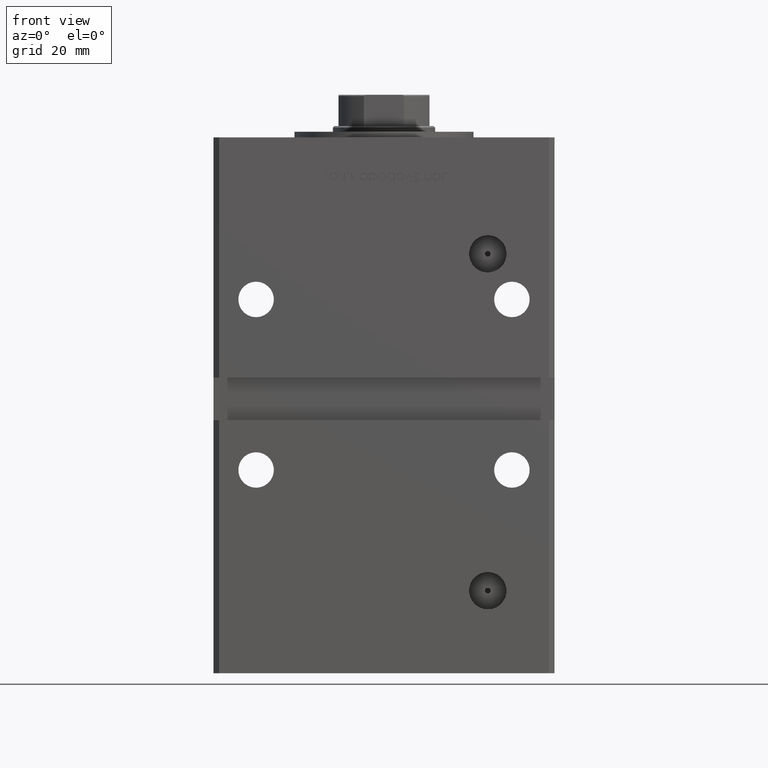
[diagram: clean part render]
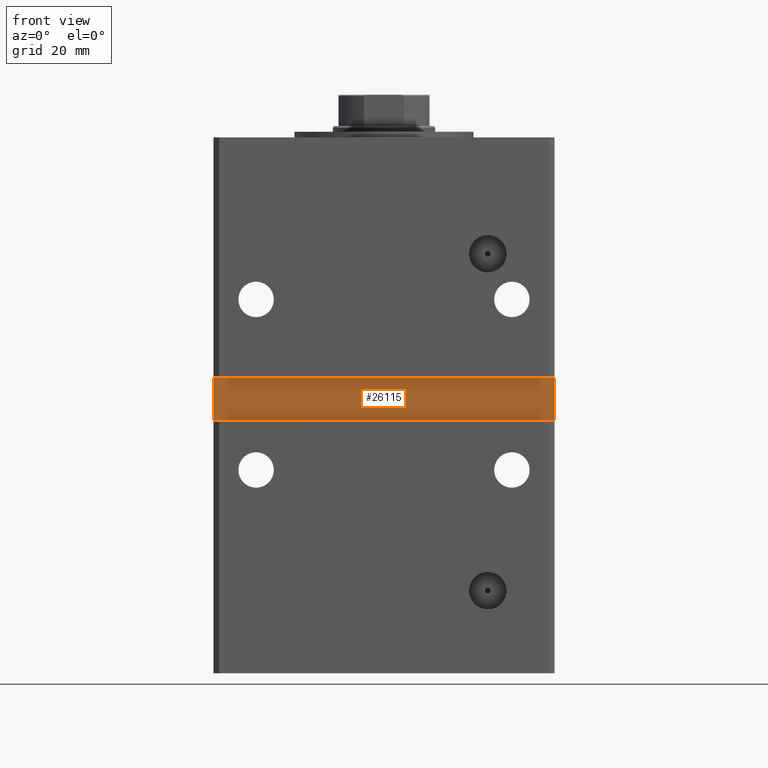
[diagram: same view with one face highlighted and labeled with its STEP entity id]
A machine part, front view. The second image highlights one B-rep face of the part: STEP entity #26115.
In plain terms, the highlighted planar face has unit normal (0, -1, 0).
Its self-contained STEP definition (entity closure, byte-faithful):
#41 = DIRECTION ( 'NONE',  ( -0.000000000000000000, -0.000000000000000000, 1.000000000000000000 ) ) ;
#620 = EDGE_CURVE ( 'NONE', #8338, #44346, #10571, .T. ) ;
#1467 = CARTESIAN_POINT ( 'NONE',  ( -59.99999999999998579, -45.99999999999999289, 68.99999999999998579 ) ) ;
#2521 = DIRECTION ( 'NONE',  ( -1.000000000000000000, -0.000000000000000000, -0.000000000000000000 ) ) ;
#4972 = LINE ( 'NONE', #1467, #41143 ) ;
#7531 = EDGE_LOOP ( 'NONE', ( #20042, #35126, #29365, #19045 ) ) ;
#7920 = VERTEX_POINT ( 'NONE', #47204 ) ;
#8338 = VERTEX_POINT ( 'NONE', #47139 ) ;
#10268 = DIRECTION ( 'NONE',  ( 0.000000000000000000, -0.000000000000000000, -1.000000000000000000 ) ) ;
#10571 = LINE ( 'NONE', #26926, #38383 ) ;
#11040 = EDGE_CURVE ( 'NONE', #49764, #7920, #4972, .T. ) ;
#11103 = LINE ( 'NONE', #43010, #25337 ) ;
#15865 = CARTESIAN_POINT ( 'NONE',  ( 59.99999999999998579, -45.99999999999999289, 83.99999999999998579 ) ) ;
#19045 = ORIENTED_EDGE ( 'NONE', *, *, #11040, .T. ) ;
#20042 = ORIENTED_EDGE ( 'NONE', *, *, #52451, .T. ) ;
#22987 = CARTESIAN_POINT ( 'NONE',  ( -59.99999999999998579, -45.99999999999999289, 68.99999999999998579 ) ) ;
#23130 = FACE_OUTER_BOUND ( 'NONE', #7531, .T. ) ;
#23575 = AXIS2_PLACEMENT_3D ( 'NONE', #30383, #39465, #10268 ) ;
#23642 = LINE ( 'NONE', #15865, #31465 ) ;
#23692 = EDGE_CURVE ( 'NONE', #44346, #49764, #11103, .T. ) ;
#25337 = VECTOR ( 'NONE', #43805, 1000.000000000000000 ) ;
#26115 = ADVANCED_FACE ( 'NONE', ( #23130 ), #31177, .T. ) ;
#26926 = CARTESIAN_POINT ( 'NONE',  ( -59.99999999999998579, -45.99999999999999289, 83.99999999999998579 ) ) ;
#29365 = ORIENTED_EDGE ( 'NONE', *, *, #23692, .T. ) ;
#30383 = CARTESIAN_POINT ( 'NONE',  ( 0.000000000000000000, -45.99999999999999289, 0.000000000000000000 ) ) ;
#31177 = PLANE ( 'NONE',  #23575 ) ;
#31465 = VECTOR ( 'NONE', #41, 1000.000000000000000 ) ;
#35126 = ORIENTED_EDGE ( 'NONE', *, *, #620, .T. ) ;
#36139 = CARTESIAN_POINT ( 'NONE',  ( -59.99999999999998579, -45.99999999999999289, 83.99999999999998579 ) ) ;
#38383 = VECTOR ( 'NONE', #2521, 1000.000000000000000 ) ;
#39465 = DIRECTION ( 'NONE',  ( 0.000000000000000000, -1.000000000000000000, 0.000000000000000000 ) ) ;
#41143 = VECTOR ( 'NONE', #50252, 1000.000000000000000 ) ;
#43010 = CARTESIAN_POINT ( 'NONE',  ( -59.99999999999998579, -45.99999999999999289, 83.99999999999998579 ) ) ;
#43805 = DIRECTION ( 'NONE',  ( 0.000000000000000000, 0.000000000000000000, -1.000000000000000000 ) ) ;
#44346 = VERTEX_POINT ( 'NONE', #36139 ) ;
#47139 = CARTESIAN_POINT ( 'NONE',  ( 59.99999999999998579, -45.99999999999999289, 83.99999999999998579 ) ) ;
#47204 = CARTESIAN_POINT ( 'NONE',  ( 59.99999999999998579, -46.00000000000000000, 68.99999999999998579 ) ) ;
#49764 = VERTEX_POINT ( 'NONE', #22987 ) ;
#50252 = DIRECTION ( 'NONE',  ( 1.000000000000000000, 0.000000000000000000, 0.000000000000000000 ) ) ;
#52451 = EDGE_CURVE ( 'NONE', #7920, #8338, #23642, .T. ) ;